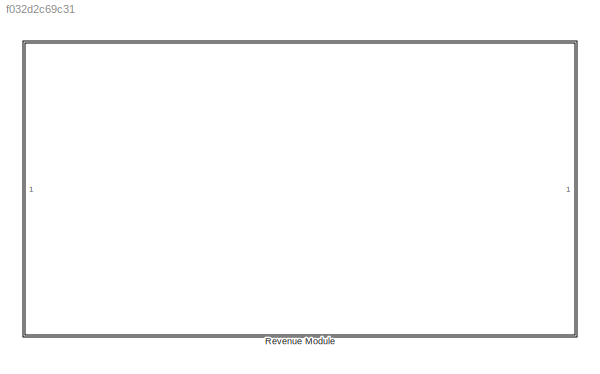
MODEL slx_f032d2c69c31
KIND library
CONFIG AbsTol = auto
CONFIG EnableMultiTasking = off
CONFIG FixedStep = auto
CONFIG MaxStep = auto
CONFIG MinStep = auto
CONFIG RelTol = 1e-3
CONFIG SampleTimeConstraint = Unconstrained
CONFIG SolverName = VariableStepAuto
CONFIG StartTime = 0.0
CONFIG StopTime = 10.0
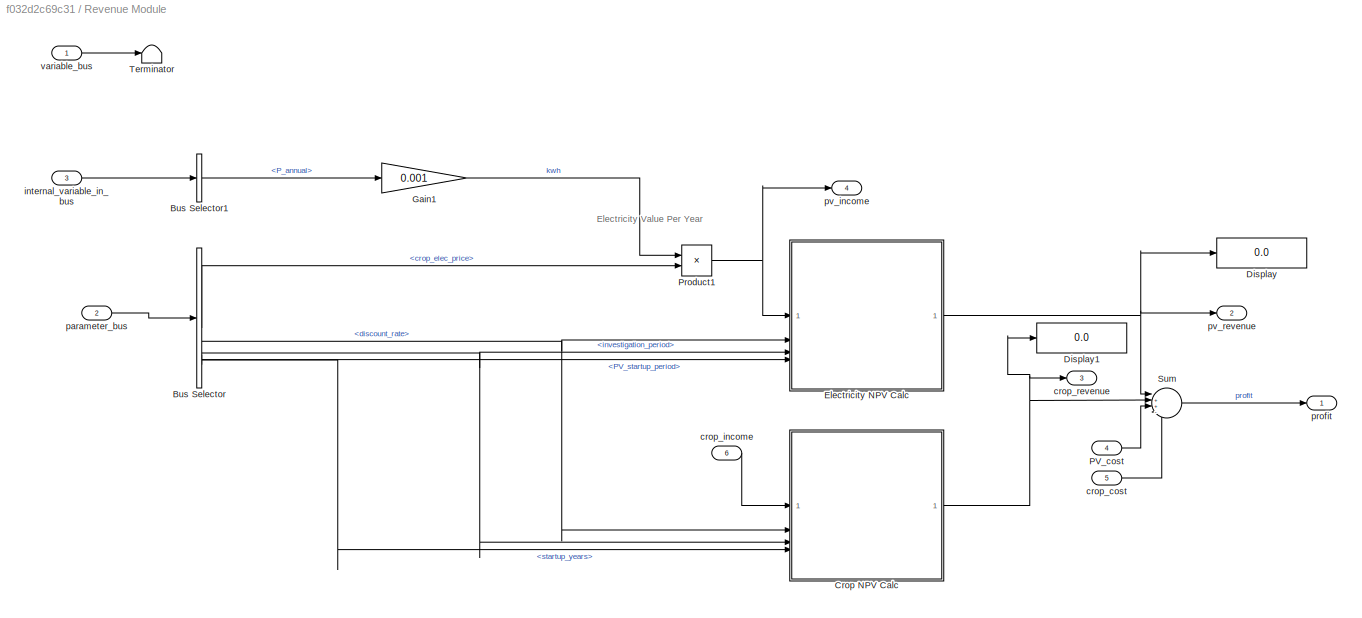
BLOCK [SubSystem] Revenue Module
BLOCK [BusSelector] Revenue Module/Bus Selector
  OutputSignals = crop_elec_price,discount_rate,investigation_period,startup_years,PV_startup_period
BLOCK [BusSelector] Revenue Module/Bus Selector1
  OutputSignals = energy_per_year.P_annual
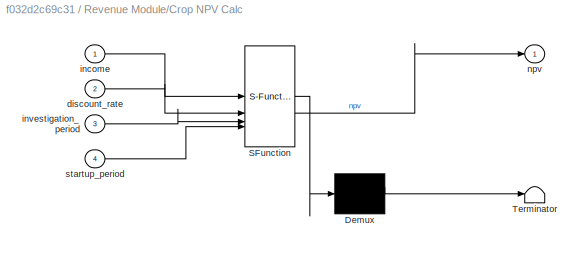
BLOCK [SubSystem] Revenue Module/Crop NPV Calc
  ErrorFcn = Stateflow.Translate.translate
  PermitHierarchicalResolution = ExplicitOnly
  SFBlockType = MATLAB Function
  TreatAsAtomicUnit = on
BLOCK [Demux] Revenue Module/Crop NPV Calc/ Demux 
  Outputs = 1
BLOCK [S-Function] Revenue Module/Crop NPV Calc/ SFunction 
  EnableBusSupport = off
  FunctionName = sf_sfun
  PortCounts = [4 2]
  SFcnIsStateOwnerBlock = off
  SFunctionDeploymentMode = off
  Tag = Stateflow S-Function 1
BLOCK [Terminator] Revenue Module/Crop NPV Calc/ Terminator 
BLOCK [Inport] Revenue Module/Crop NPV Calc/discount_rate
  Port = 2
BLOCK [Inport] Revenue Module/Crop NPV Calc/income
BLOCK [Inport] Revenue Module/Crop NPV Calc/investigation_period
  Port = 3
BLOCK [Outport] Revenue Module/Crop NPV Calc/npv
BLOCK [Inport] Revenue Module/Crop NPV Calc/startup_period
  Port = 4
BLOCK [Display] Revenue Module/Display
  Decimation = 1
BLOCK [Display] Revenue Module/Display1
  Decimation = 1
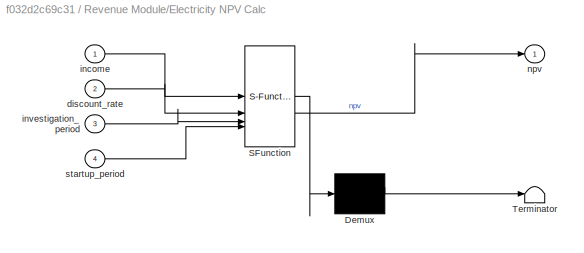
BLOCK [SubSystem] Revenue Module/Electricity NPV Calc
  ErrorFcn = Stateflow.Translate.translate
  PermitHierarchicalResolution = ExplicitOnly
  SFBlockType = MATLAB Function
  TreatAsAtomicUnit = on
BLOCK [Demux] Revenue Module/Electricity NPV Calc/ Demux 
  Outputs = 1
BLOCK [S-Function] Revenue Module/Electricity NPV Calc/ SFunction 
  EnableBusSupport = off
  FunctionName = sf_sfun
  PortCounts = [4 2]
  SFcnIsStateOwnerBlock = off
  SFunctionDeploymentMode = off
  Tag = Stateflow S-Function 3
BLOCK [Terminator] Revenue Module/Electricity NPV Calc/ Terminator 
BLOCK [Inport] Revenue Module/Electricity NPV Calc/discount_rate
  Port = 2
BLOCK [Inport] Revenue Module/Electricity NPV Calc/income
BLOCK [Inport] Revenue Module/Electricity NPV Calc/investigation_period
  Port = 3
BLOCK [Outport] Revenue Module/Electricity NPV Calc/npv
BLOCK [Inport] Revenue Module/Electricity NPV Calc/startup_period
  Port = 4
BLOCK [Gain] Revenue Module/Gain1
  Gain = 0.001
BLOCK [Inport] Revenue Module/PV_cost
  Port = 4
BLOCK [Product] Revenue Module/Product1
BLOCK [Sum] Revenue Module/Sum
  Inputs = |++--
BLOCK [Terminator] Revenue Module/Terminator
BLOCK [Inport] Revenue Module/crop_cost
  Port = 5
BLOCK [Inport] Revenue Module/crop_income
  Port = 6
BLOCK [Outport] Revenue Module/crop_revenue
  Port = 3
BLOCK [Inport] Revenue Module/internal_variable_in_bus
  Port = 3
BLOCK [Inport] Revenue Module/parameter_bus
  Port = 2
BLOCK [Outport] Revenue Module/profit
BLOCK [Outport] Revenue Module/pv_income
  Port = 4
BLOCK [Outport] Revenue Module/pv_revenue
  Port = 2
BLOCK [Inport] Revenue Module/variable_bus
ANNOTATION Revenue Module: Electricity Value Per Year
LINE Revenue Module/Bus Selector1:1 -> Revenue Module/Gain1:1
LINE Revenue Module/Bus Selector:1 -> Revenue Module/Product1:2
NET Revenue Module/Bus Selector:2 -> Revenue Module/Crop NPV Calc:2, Revenue Module/Electricity NPV Calc:2
NET Revenue Module/Bus Selector:3 -> Revenue Module/Crop NPV Calc:3, Revenue Module/Electricity NPV Calc:3
LINE Revenue Module/Bus Selector:4 -> Revenue Module/Crop NPV Calc:4
LINE Revenue Module/Bus Selector:5 -> Revenue Module/Electricity NPV Calc:4
NET Revenue Module/Crop NPV Calc:1 -> Revenue Module/Display1:1, Revenue Module/Sum:2, Revenue Module/crop_revenue:1
NET Revenue Module/Electricity NPV Calc:1 -> Revenue Module/Display:1, Revenue Module/Sum:1, Revenue Module/pv_revenue:1
LINE Revenue Module/Gain1:1 -> Revenue Module/Product1:1
LINE Revenue Module/PV_cost:1 -> Revenue Module/Sum:3
NET Revenue Module/Product1:1 -> Revenue Module/Electricity NPV Calc:1, Revenue Module/pv_income:1
LINE Revenue Module/Sum:1 -> Revenue Module/profit:1
LINE Revenue Module/crop_cost:1 -> Revenue Module/Sum:4
LINE Revenue Module/crop_income:1 -> Revenue Module/Crop NPV Calc:1
LINE Revenue Module/internal_variable_in_bus:1 -> Revenue Module/Bus Selector1:1
LINE Revenue Module/parameter_bus:1 -> Revenue Module/Bus Selector:1
LINE Revenue Module/variable_bus:1 -> Revenue Module/Terminator:1
note: NET lines group one-source signal fan-out (src -> all destinations, sorted); 1:1 wires keep LINE
CHART Revenue Module/Crop NPV Calc states=1 transitions=1
  STATE_LABEL 'eML_blk_kernel()'
  STATE_LABEL 'SCRIPT:\nfunction npv = calc_discounted_cash_flow(income, discount_rate, investigation_period,startup_period)\n    exponent_value = startup_period:investigation_period-1;\n    npv = sum(income ./ (1 + discount_rate).^exponent_value)+0.1.*(income./(1+discount_rate).^(startup_period-1));\nend\n'
CHART Revenue Module/Electricity NPV Calc states=1 transitions=1
  STATE_LABEL 'eML_blk_kernel()'
  STATE_LABEL 'SCRIPT:\nfunction npv = calc_discounted_cash_flow(income, discount_rate, investigation_period,startup_period)\n    exponent_value = startup_period:investigation_period-1;\n    npv = sum(income ./ (1 + discount_rate).^exponent_value);\nend\n'
CHART  states=0 transitions=0
CHART  states=0 transitions=0
